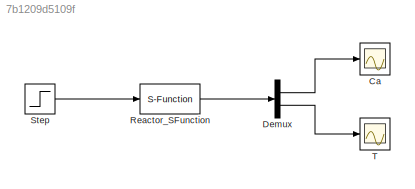
MODEL slx_7b1209d5109f
KIND model
CONFIG AbsTol = auto
CONFIG EnableMultiTasking = off
CONFIG FixedStep = auto
CONFIG MaxStep = auto
CONFIG MinStep = auto
CONFIG RelTol = 1e-3
CONFIG SampleTimeConstraint = Unconstrained
CONFIG SolverName = VariableStepAuto
CONFIG StartTime = 0.0
CONFIG StopTime = 10.0
BLOCK [Scope] Ca
  Floating = off
  NumInputPorts = 1
  ScopeSpecificationString = Simulink.scopes.TimeScopeBlockCfg('CurrentConfiguration', extmgr.ConfigurationSet(extmgr.Configuration('Core','General UI',true),extmgr.Configuration('Core','Source UI',true),extmgr.Configuration('Sources','WiredSimulink',true),extmgr.Configuration('Visuals','Time Domain',true,'SerializedDisplays',{struct('MinYLimReal','0.09634','MaxYLimReal','0.13292','YLabelReal','','MinYLimMag','0.09634','MaxYL...<+1384ch>
BLOCK [Demux] Demux
  Outputs = 2
BLOCK [S-Function] Reactor_SFunction
  EnableBusSupport = off
  FunctionName = reactor_sfcn
  Parameters = 0.1, 40
  SFcnIsStateOwnerBlock = off
  SFunctionDeploymentMode = off
BLOCK [Step] Step
  SampleTime = 0
BLOCK [Scope] T
  Floating = off
  NumInputPorts = 1
  ScopeSpecificationString = Simulink.scopes.TimeScopeBlockCfg('CurrentConfiguration', extmgr.ConfigurationSet(extmgr.Configuration('Core','General UI',true),extmgr.Configuration('Core','Source UI',true),extmgr.Configuration('Sources','WiredSimulink',true,'DataLoggingVariableName','ScopeData1'),extmgr.Configuration('Visuals','Time Domain',true,'SerializedDisplays',{struct('MinYLimReal','36.28804','MaxYLimReal','40.41244','YLa...<+1372ch>
LINE Demux:1 -> Ca:1
LINE Demux:2 -> T:1
LINE Reactor_SFunction:1 -> Demux:1
LINE Step:1 -> Reactor_SFunction:1
